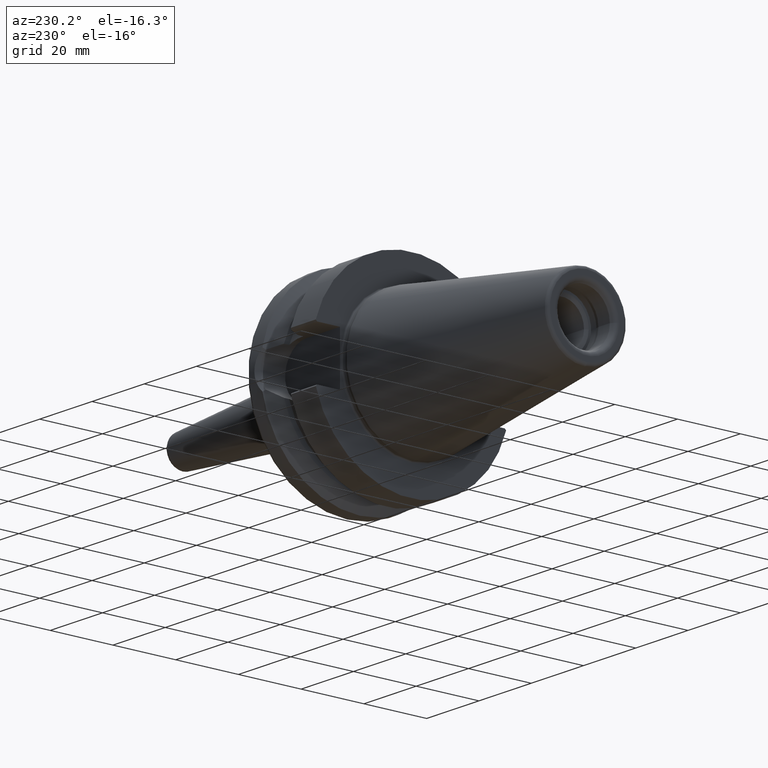
[diagram: clean part render]
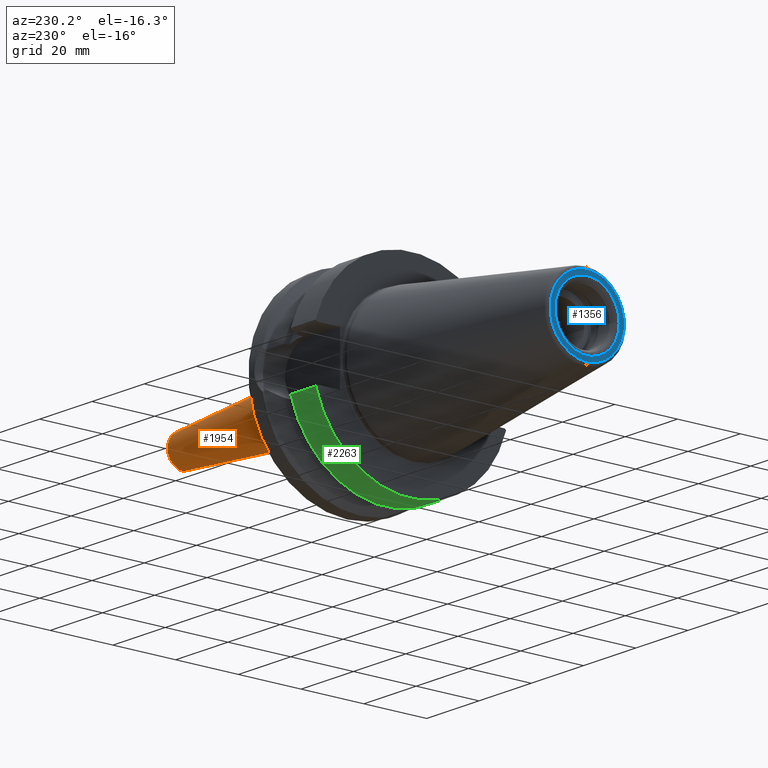
[diagram: same view with three faces highlighted in distinct colors, each labeled with its STEP entity id]
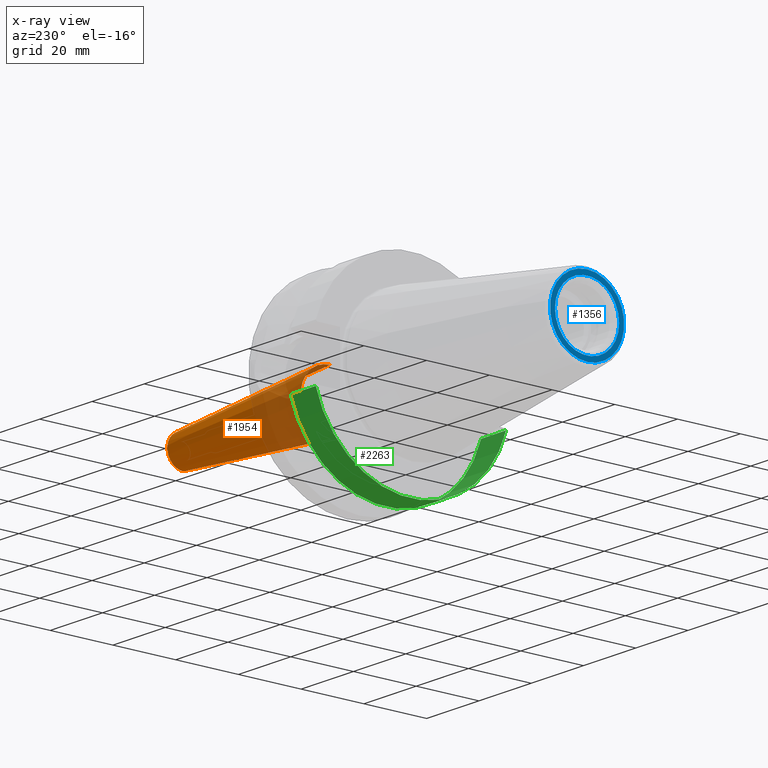
[diagram: x-ray of the same camera — body ghosted, the three highlighted faces saturated]
A machine part, auxiliary view with three faces highlighted in distinct colors.
The next image is the same camera in x-ray (body ghosted, the three faces saturated) — at least one of them is partly hidden behind the body in this view.
Their STEP definitions:

[orange] entity #1954 — the highlighted conical surface has half-angle 4.5 deg.
#446=DIRECTION('',(-9.969173337331E-1,0.E0,-7.845909572784E-2));
#447=VECTOR('',#446,5.643033630266E1);
#448=CARTESIAN_POINT('',(8.907845909573E1,0.E0,-5.072526842075E0));
#449=LINE('',#448,#447);
#450=DIRECTION('',(-9.969173337331E-1,0.E0,7.845909572784E-2));
#451=VECTOR('',#450,5.643033630266E1);
#452=CARTESIAN_POINT('',(8.907845909573E1,0.E0,5.072526842075E0));
#453=LINE('',#452,#451);
#459=CARTESIAN_POINT('',(8.907845909573E1,0.E0,0.E0));
#460=DIRECTION('',(1.E0,0.E0,0.E0));
#461=DIRECTION('',(0.E0,0.E0,-1.E0));
#462=AXIS2_PLACEMENT_3D('',#459,#460,#461);
#464=CARTESIAN_POINT('',(3.282207868721E1,0.E0,0.E0));
#465=DIRECTION('',(1.E0,0.E0,0.E0));
#466=DIRECTION('',(0.E0,0.E0,-1.E0));
#467=AXIS2_PLACEMENT_3D('',#464,#465,#466);
#1222=CARTESIAN_POINT('',(8.907845909573E1,0.E0,-5.072526842075E0));
#1224=VERTEX_POINT('',#1222);
#1225=CARTESIAN_POINT('',(3.282207868721E1,0.E0,-9.5E0));
#1226=VERTEX_POINT('',#1225);
#1246=CARTESIAN_POINT('',(8.907845909573E1,0.E0,5.072526842075E0));
#1248=VERTEX_POINT('',#1246);
#1249=CARTESIAN_POINT('',(3.282207868721E1,0.E0,9.5E0));
#1250=VERTEX_POINT('',#1249);
#1942=CARTESIAN_POINT('',(6.095026889147E1,0.E0,0.E0));
#1943=DIRECTION('',(-1.E0,0.E0,0.E0));
#1944=DIRECTION('',(0.E0,0.E0,-1.E0));
#1945=AXIS2_PLACEMENT_3D('',#1942,#1943,#1944);
#1946=CONICAL_SURFACE('',#1945,7.286263421037E0,4.5E0);
#1947=ORIENTED_EDGE('',*,*,#1932,.F.);
#1948=ORIENTED_EDGE('',*,*,#1909,.T.);
#1949=ORIENTED_EDGE('',*,*,#1936,.T.);
#1951=ORIENTED_EDGE('',*,*,#1950,.F.);
#1952=EDGE_LOOP('',(#1947,#1948,#1949,#1951));
#1953=FACE_OUTER_BOUND('',#1952,.F.);
#1954=ADVANCED_FACE('',(#1953),#1946,.T.);
#463=CIRCLE('',#462,5.072526842075E0);
#468=CIRCLE('',#467,9.5E0);
#1909=EDGE_CURVE('',#1224,#1248,#463,.T.);
#1932=EDGE_CURVE('',#1224,#1226,#449,.T.);
#1936=EDGE_CURVE('',#1248,#1250,#453,.T.);
#1950=EDGE_CURVE('',#1226,#1250,#468,.T.);

[blue] entity #1356 — the highlighted planar face has unit normal (1, 0, 0).
#43=CARTESIAN_POINT('',(-6.54E1,0.E0,0.E0));
#44=DIRECTION('',(1.E0,0.E0,0.E0));
#45=DIRECTION('',(0.E0,-1.E0,6.962880139683E-8));
#46=AXIS2_PLACEMENT_3D('',#43,#44,#45);
#48=CARTESIAN_POINT('',(-6.54E1,0.E0,0.E0));
#49=DIRECTION('',(1.E0,0.E0,0.E0));
#50=DIRECTION('',(0.E0,1.E0,-6.962880482447E-8));
#51=AXIS2_PLACEMENT_3D('',#48,#49,#50);
#53=CARTESIAN_POINT('',(-6.54E1,0.E0,0.E0));
#54=DIRECTION('',(-1.E0,0.E0,0.E0));
#55=DIRECTION('',(0.E0,0.E0,1.E0));
#56=AXIS2_PLACEMENT_3D('',#53,#54,#55);
#58=CARTESIAN_POINT('',(-6.54E1,0.E0,0.E0));
#59=DIRECTION('',(-1.E0,0.E0,0.E0));
#60=DIRECTION('',(0.E0,0.E0,-1.E0));
#61=AXIS2_PLACEMENT_3D('',#58,#59,#60);
#1080=CARTESIAN_POINT('',(-6.54E1,-1.023205080757E1,7.124454427166E-7));
#1081=CARTESIAN_POINT('',(-6.54E1,1.023205080757E1,-7.124454665569E-7));
#1082=VERTEX_POINT('',#1080);
#1083=VERTEX_POINT('',#1081);
#1088=CARTESIAN_POINT('',(-6.54E1,0.E0,1.182275625261E1));
#1089=CARTESIAN_POINT('',(-6.54E1,0.E0,-1.182275625261E1));
#1090=VERTEX_POINT('',#1088);
#1091=VERTEX_POINT('',#1089);
#1340=CARTESIAN_POINT('',(-6.54E1,0.E0,0.E0));
#1341=DIRECTION('',(1.E0,0.E0,0.E0));
#1342=DIRECTION('',(0.E0,0.E0,1.E0));
#1343=AXIS2_PLACEMENT_3D('',#1340,#1341,#1342);
#1344=PLANE('',#1343);
#1346=ORIENTED_EDGE('',*,*,#1345,.F.);
#1347=ORIENTED_EDGE('',*,*,#1330,.F.);
#1348=EDGE_LOOP('',(#1346,#1347));
#1349=FACE_OUTER_BOUND('',#1348,.F.);
#1351=ORIENTED_EDGE('',*,*,#1350,.F.);
#1353=ORIENTED_EDGE('',*,*,#1352,.F.);
#1354=EDGE_LOOP('',(#1351,#1353));
#1355=FACE_BOUND('',#1354,.F.);
#1356=ADVANCED_FACE('',(#1349,#1355),#1344,.F.);
#47=CIRCLE('',#46,1.023205080757E1);
#52=CIRCLE('',#51,1.023205080757E1);
#57=CIRCLE('',#56,1.182275625261E1);
#62=CIRCLE('',#61,1.182275625261E1);
#1330=EDGE_CURVE('',#1091,#1090,#62,.T.);
#1345=EDGE_CURVE('',#1090,#1091,#57,.T.);
#1350=EDGE_CURVE('',#1082,#1083,#47,.T.);
#1352=EDGE_CURVE('',#1083,#1082,#52,.T.);

[green] entity #2263 — the highlighted cylindrical surface (partial cylindrical patch) has radius 31.5 mm, axis along (-1, 0, 0).
#729=DIRECTION('',(-1.E0,0.E0,0.E0));
#730=VECTOR('',#729,9.5690365E0);
#731=CARTESIAN_POINT('',(1.15690365E1,-3.033554803451E1,-8.485548034509E0));
#732=LINE('',#731,#730);
#733=DIRECTION('',(-1.E0,0.E0,0.E0));
#734=VECTOR('',#733,9.5690365E0);
#735=CARTESIAN_POINT('',(1.15690365E1,3.033554803451E1,-8.485548034509E0));
#736=LINE('',#735,#734);
#737=CARTESIAN_POINT('',(2.E0,0.E0,0.E0));
#738=DIRECTION('',(-1.E0,0.E0,0.E0));
#739=DIRECTION('',(0.E0,9.630332709368E-1,-2.693824772860E-1));
#740=AXIS2_PLACEMENT_3D('',#737,#738,#739);
#845=CARTESIAN_POINT('',(1.15690365E1,3.033554803451E1,-8.485548034509E0));
#847=CARTESIAN_POINT('',(1.15690365E1,0.E0,0.E0));
#848=DIRECTION('',(-1.E0,0.E0,0.E0));
#849=DIRECTION('',(0.E0,9.630332709368E-1,-2.693824772860E-1));
#850=AXIS2_PLACEMENT_3D('',#847,#848,#849);
#1141=VERTEX_POINT('',#845);
#1158=CARTESIAN_POINT('',(2.E0,3.033554803451E1,-8.485548034509E0));
#1159=VERTEX_POINT('',#1158);
#1164=CARTESIAN_POINT('',(1.15690365E1,-3.033554803451E1,-8.485548034509E0));
#1165=CARTESIAN_POINT('',(2.E0,-3.033554803451E1,-8.485548034509E0));
#1166=VERTEX_POINT('',#1164);
#1167=VERTEX_POINT('',#1165);
#2248=CARTESIAN_POINT('',(0.E0,0.E0,0.E0));
#2249=DIRECTION('',(-1.E0,0.E0,0.E0));
#2250=DIRECTION('',(0.E0,0.E0,-1.E0));
#2251=AXIS2_PLACEMENT_3D('',#2248,#2249,#2250);
#2252=CYLINDRICAL_SURFACE('',#2251,3.15E1);
#2254=ORIENTED_EDGE('',*,*,#2253,.F.);
#2256=ORIENTED_EDGE('',*,*,#2255,.F.);
#2258=ORIENTED_EDGE('',*,*,#2257,.T.);
#2260=ORIENTED_EDGE('',*,*,#2259,.T.);
#2261=EDGE_LOOP('',(#2254,#2256,#2258,#2260));
#2262=FACE_OUTER_BOUND('',#2261,.F.);
#2263=ADVANCED_FACE('',(#2262),#2252,.T.);
#741=CIRCLE('',#740,3.15E1);
#851=CIRCLE('',#850,3.15E1);
#2253=EDGE_CURVE('',#1166,#1167,#732,.T.);
#2255=EDGE_CURVE('',#1141,#1166,#851,.T.);
#2257=EDGE_CURVE('',#1141,#1159,#736,.T.);
#2259=EDGE_CURVE('',#1159,#1167,#741,.T.);